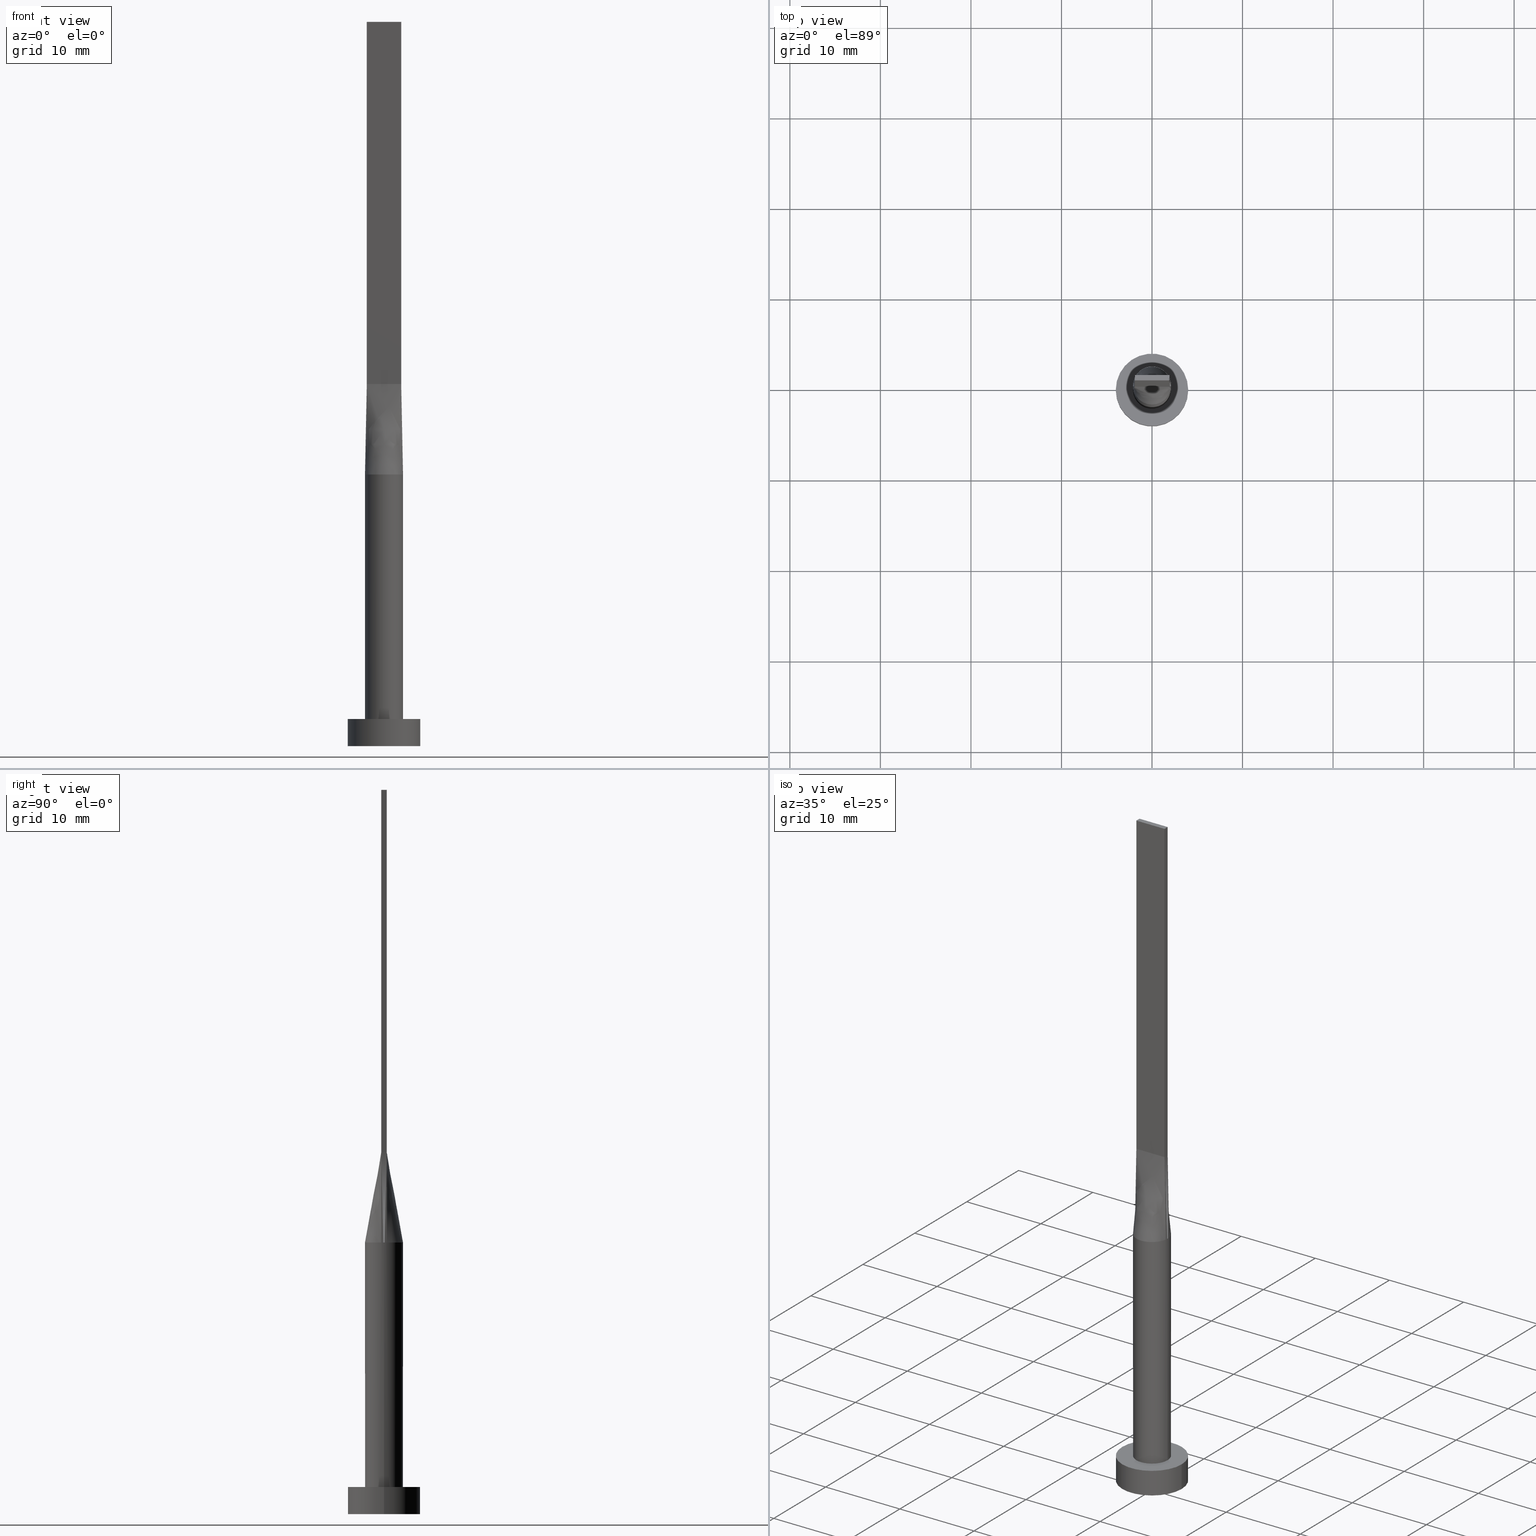
[diagram: canonical four-view strip — front | top / right | iso, engineering-drawing reading convention]
A machine part, canonical four-view strip (front | top / right | iso — engineering-drawing reading convention). The complete STEP part file that produces these views, byte-faithful:
ISO-10303-21;
HEADER;
FILE_DESCRIPTION (( 'STEP AP203' ),
    '1' );
FILE_NAME ('d4d4.STEP',
    '2026-02-12T09:05:20',
    ( '' ),
    ( '' ),
    'SwSTEP 2.0',
    'SolidWorks 2019',
    '' );
FILE_SCHEMA (( 'CONFIG_CONTROL_DESIGN' ));
ENDSEC;

DATA;
#1 = DATE_AND_TIME ( #402, #19 ) ;
#2 = LINE ( 'NONE', #552, #215 ) ;
#3 = FACE_OUTER_BOUND ( 'NONE', #342, .T. ) ;
#4 = DIRECTION ( 'NONE',  ( 1.000000000000000000, 0.000000000000000000, 0.000000000000000000 ) ) ;
#5 = EDGE_CURVE ( 'NONE', #261, #35, #446, .T. ) ;
#6 = LINE ( 'NONE', #216, #61 ) ;
#7 = CARTESIAN_POINT ( 'NONE',  ( 1.987151113595522212, 0.3137607021466614077, 35.00000000000000000 ) ) ;
#8 = CARTESIAN_POINT ( 'NONE',  ( -0.5970064165420509994, -2.033566071616262239, 30.00000000000000711 ) ) ;
#9 = DIRECTION ( 'NONE',  ( -0.000000000000000000, -0.000000000000000000, -1.000000000000000000 ) ) ;
#10 = CARTESIAN_POINT ( 'NONE',  ( 1.119115561862284114, -1.799829988698610883, 30.00000000000000000 ) ) ;
#11 = CYLINDRICAL_SURFACE ( 'NONE', #329, 4.000000000000000000 ) ;
#12 = DIRECTION ( 'NONE',  ( 7.132909029509899409E-17, 1.000000000000000000, -0.000000000000000000 ) ) ;
#13 = CARTESIAN_POINT ( 'NONE',  ( 0.3166666666666672625, -0.2999999999999996003, 39.99999999999999289 ) ) ;
#14 = CC_DESIGN_PERSON_AND_ORGANIZATION_ASSIGNMENT ( #127, #269, ( #231 ) ) ;
#15 = CARTESIAN_POINT ( 'NONE',  ( -1.899999999999999911, -0.2999999999999994893, 40.00000000000000000 ) ) ;
#16 = CARTESIAN_POINT ( 'NONE',  ( -1.899999999999999689, 0.3000000000000002109, 40.00000000000000000 ) ) ;
#17 = CARTESIAN_POINT ( 'NONE',  ( -1.899999999999999689, 0.3000000000000002109, 80.00000000000000000 ) ) ;
#18 = DIRECTION ( 'NONE',  ( -0.000000000000000000, -0.000000000000000000, -1.000000000000000000 ) ) ;
#19 = LOCAL_TIME ( 10, 5, 20.00000000000000000, #174 ) ;
#20 = PRODUCT ( 'd4d4', 'd4d4', '', ( #45 ) ) ;
#21 = DIRECTION ( 'NONE',  ( 0.000000000000000000, 0.000000000000000000, 1.000000000000000000 ) ) ;
#22 = LINE ( 'NONE', #206, #495 ) ;
#23 = EDGE_CURVE ( 'NONE', #389, #117, #489, .T. ) ;
#24 = ORIENTED_EDGE ( 'NONE', *, *, #220, .T. ) ;
#25 = B_SPLINE_SURFACE_WITH_KNOTS ( 'NONE', 3, 1, ( 
 ( #319, #497 ),
 ( #549, #281 ),
 ( #375, #500 ),
 ( #97, #278 ),
 ( #455, #556 ),
 ( #95, #188 ) ),
 .UNSPECIFIED., .F., .F., .F.,
 ( 4, 2, 4 ),
 ( 2, 2 ),
 ( 0.000000000000000000, 0.5000000000000000000, 1.000000000000000000 ),
 ( 0.000000000000000000, 1.000000000000000000 ),
 .UNSPECIFIED. ) ;
#26 = CARTESIAN_POINT ( 'NONE',  ( 1.741666666666666474, 0.3000000000000002109, 39.99999999999999289 ) ) ;
#27 = ORIENTED_EDGE ( 'NONE', *, *, #543, .T. ) ;
#28 = CARTESIAN_POINT ( 'NONE',  ( 2.074302227191044956, 0.3275214042933228820, 30.00000000000000000 ) ) ;
#29 = ORIENTED_EDGE ( 'NONE', *, *, #88, .T. ) ;
#30 = CARTESIAN_POINT ( 'NONE',  ( 1.899999999999999689, 0.3000000000000002109, 80.00000000000000000 ) ) ;
#31 = ORIENTED_EDGE ( 'NONE', *, *, #353, .T. ) ;
#32 = PRODUCT_RELATED_PRODUCT_CATEGORY ( 'detail', '', ( #20 ) ) ;
#33 = COORDINATED_UNIVERSAL_TIME_OFFSET ( 1, 0, .AHEAD. ) ;
#34 = B_SPLINE_SURFACE_WITH_KNOTS ( 'NONE', 3, 1, ( 
 ( #28, #435 ),
 ( #123, #26 ),
 ( #430, #425 ),
 ( #569, #469 ),
 ( #115, #428 ),
 ( #294, #120 ),
 ( #251, #467 ),
 ( #158, #296 ),
 ( #386, #474 ),
 ( #77, #391 ),
 ( #201, #343 ),
 ( #561, #477 ),
 ( #337, #341 ),
 ( #255, #388 ),
 ( #567, #522 ),
 ( #73, #564 ),
 ( #257, #298 ),
 ( #472, #164 ) ),
 .UNSPECIFIED., .F., .F., .F.,
 ( 4, 2, 2, 2, 2, 2, 2, 2, 4 ),
 ( 2, 2 ),
 ( 0.000000000000000000, 0.1249999999999999722, 0.2500000000000000000, 0.3750000000000000000, 0.5000000000000000000, 0.6250000000000000000, 0.7500000000000000000, 0.8750000000000000000, 1.000000000000000000 ),
 ( 0.000000000000000000, 1.000000000000000000 ),
 .UNSPECIFIED. ) ;
#35 = VERTEX_POINT ( 'NONE', #577 ) ;
#36 = ORIENTED_EDGE ( 'NONE', *, *, #335, .F. ) ;
#37 = CC_DESIGN_APPROVAL ( #286, ( #330 ) ) ;
#38 = VECTOR ( 'NONE', #310, 1000.000000000000000 ) ;
#39 = DIRECTION ( 'NONE',  ( -0.000000000000000000, -0.000000000000000000, -1.000000000000000000 ) ) ;
#40 =( NAMED_UNIT ( * ) PLANE_ANGLE_UNIT ( ) SI_UNIT ( $, .RADIAN. ) );
#41 = EDGE_CURVE ( 'NONE', #389, #65, #104, .T. ) ;
#42 = CARTESIAN_POINT ( 'NONE',  ( -1.899999999999999911, -0.2999999999999994893, 40.00000000000000000 ) ) ;
#43 = COORDINATED_UNIVERSAL_TIME_OFFSET ( 1, 0, .AHEAD. ) ;
#44 = DIRECTION ( 'NONE',  ( 0.000000000000000000, 0.000000000000000000, 1.000000000000000000 ) ) ;
#45 = MECHANICAL_CONTEXT ( 'NONE', #222, 'mechanical' ) ;
#46 = AXIS2_PLACEMENT_3D ( 'NONE', #100, #12, #193 ) ;
#47 = DIRECTION ( 'NONE',  ( 1.000000000000000000, -7.993605777301127091E-15, 0.000000000000000000 ) ) ;
#48 = ORIENTED_EDGE ( 'NONE', *, *, #267, .T. ) ;
#49 = VECTOR ( 'NONE', #357, 1000.000000000000000 ) ;
#50 = CIRCLE ( 'NONE', #348, 2.100000000000000089 ) ;
#51 = ADVANCED_FACE ( 'NONE', ( #3 ), #532, .T. ) ;
#52 = CARTESIAN_POINT ( 'NONE',  ( -2.091329254218072364, 0.2196835664554852019, 30.00000000000000000 ) ) ;
#53 = B_SPLINE_CURVE_WITH_KNOTS ( 'NONE', 3,
 ( #273, #263, #312, #452, #493, #54, #175, #183, #544, #139, #93, #318, #86, #397, #131, #355, #307, #444 ),
 .UNSPECIFIED., .F., .F.,
 ( 4, 2, 2, 2, 2, 2, 2, 2, 4 ),
 ( 0.000000000000000000, 0.1249999999999999722, 0.2500000000000000000, 0.3750000000000000000, 0.5000000000000000000, 0.6250000000000000000, 0.7500000000000000000, 0.8750000000000000000, 1.000000000000000000 ),
 .UNSPECIFIED. ) ;
#54 = CARTESIAN_POINT ( 'NONE',  ( 1.342614810400549086, 1.634425746458369799, 30.00000000000001066 ) ) ;
#55 = CARTESIAN_POINT ( 'NONE',  ( -1.899999999999999911, -0.2999999999999994893, 40.00000000000000000 ) ) ;
#56 = CARTESIAN_POINT ( 'NONE',  ( 1.266666666666665941, -0.2999999999999997113, 39.99999999999999289 ) ) ;
#57 = FACE_OUTER_BOUND ( 'NONE', #433, .T. ) ;
#58 = APPLICATION_CONTEXT ( 'configuration controlled 3d designs of mechanical parts and assemblies' ) ;
#59 = CARTESIAN_POINT ( 'NONE',  ( -1.342614810400548864, -1.634425746458369355, 30.00000000000000355 ) ) ;
#60 = DIRECTION ( 'NONE',  ( 0.000000000000000000, 0.000000000000000000, 1.000000000000000000 ) ) ;
#61 = VECTOR ( 'NONE', #219, 1000.000000000000000 ) ;
#62 = CARTESIAN_POINT ( 'NONE',  ( -2.099842767731585624, -0.1098417832277421985, 30.00000000000000000 ) ) ;
#63 = EDGE_CURVE ( 'NONE', #450, #117, #448, .T. ) ;
#64 = CARTESIAN_POINT ( 'NONE',  ( 0.2990728642939452508, -2.100000000000000533, 30.00000000000001776 ) ) ;
#65 = VERTEX_POINT ( 'NONE', #270 ) ;
#66 = PLANE ( 'NONE',  #422 ) ;
#67 = DIRECTION ( 'NONE',  ( 0.000000000000000000, 0.000000000000000000, 1.000000000000000000 ) ) ;
#68 = CARTESIAN_POINT ( 'NONE',  ( 1.899999999999999023, -0.2999999999999997669, 80.00000000000000000 ) ) ;
#69 = CYLINDRICAL_SURFACE ( 'NONE', #572, 2.100000000000000089 ) ;
#70 = DIRECTION ( 'NONE',  ( -0.000000000000000000, -0.000000000000000000, -1.000000000000000000 ) ) ;
#71 = CIRCLE ( 'NONE', #479, 2.100000000000000089 ) ;
#72 = EDGE_CURVE ( 'NONE', #250, #541, #361, .T. ) ;
#73 = CARTESIAN_POINT ( 'NONE',  ( -1.996565546919327527, 0.6845950695482648785, 30.00000000000001066 ) ) ;
#74 = CARTESIAN_POINT ( 'NONE',  ( 1.899999999999999689, 0.3000000000000002109, 80.00000000000000000 ) ) ;
#75 = CARTESIAN_POINT ( 'NONE',  ( 0.000000000000000000, 0.000000000000000000, 80.00000000000000000 ) ) ;
#76 = EDGE_LOOP ( 'NONE', ( #505, #190, #165, #340 ) ) ;
#77 = CARTESIAN_POINT ( 'NONE',  ( -0.2990728642939458615, 2.100000000000000089, 30.00000000000001066 ) ) ;
#78 = ORIENTED_EDGE ( 'NONE', *, *, #101, .T. ) ;
#79 = VECTOR ( 'NONE', #107, 1000.000000000000114 ) ;
#80 = PLANE ( 'NONE',  #470 ) ;
#81 = CC_DESIGN_PERSON_AND_ORGANIZATION_ASSIGNMENT ( #535, #393, ( #330 ) ) ;
#82 = EDGE_LOOP ( 'NONE', ( #126, #265 ) ) ;
#83 = APPLICATION_PROTOCOL_DEFINITION ( 'international standard', 'config_control_design', 1994, #222 ) ;
#84 = ORIENTED_EDGE ( 'NONE', *, *, #41, .T. ) ;
#85 = PERSON_AND_ORGANIZATION ( #303, #258 ) ;
#86 = CARTESIAN_POINT ( 'NONE',  ( -1.342614810400549308, 1.634425746458370021, 30.00000000000000711 ) ) ;
#87 = APPROVAL_ROLE ( '' ) ;
#88 = EDGE_CURVE ( 'NONE', #538, #225, #6, .T. ) ;
#89 = CARTESIAN_POINT ( 'NONE',  ( -2.074302227191044956, -0.3275214042933223824, 30.00000000000000000 ) ) ;
#90 =( LENGTH_UNIT ( ) NAMED_UNIT ( * ) SI_UNIT ( .MILLI., .METRE. ) );
#91 = CARTESIAN_POINT ( 'NONE',  ( 1.899999999999999023, -0.2999999999999997669, 80.00000000000000000 ) ) ;
#92 = EDGE_LOOP ( 'NONE', ( #84, #492, #268, #224, #534 ) ) ;
#93 = CARTESIAN_POINT ( 'NONE',  ( -0.5970064165420507774, 2.033566071616263127, 30.00000000000000000 ) ) ;
#94 = DIRECTION ( 'NONE',  ( 1.000000000000000000, 0.000000000000000000, 0.000000000000000000 ) ) ;
#95 = CARTESIAN_POINT ( 'NONE',  ( 2.074302227191044956, 0.3275214042933226599, 30.00000000000000000 ) ) ;
#96 = CARTESIAN_POINT ( 'NONE',  ( -1.583333333333333037, -0.2999999999999994893, 40.00000000000000000 ) ) ;
#97 = CARTESIAN_POINT ( 'NONE',  ( 2.099842767731585624, 0.1098417832277423373, 30.00000000000000000 ) ) ;
#98 = CARTESIAN_POINT ( 'NONE',  ( -0.2990728642939464721, -2.100000000000000977, 30.00000000000001421 ) ) ;
#99 = DIRECTION ( 'NONE',  ( 1.000000000000000000, 0.000000000000000000, 0.000000000000000000 ) ) ;
#100 = CARTESIAN_POINT ( 'NONE',  ( -1.899999999999999911, -0.2999999999999994893, 80.00000000000000000 ) ) ;
#101 = EDGE_CURVE ( 'NONE', #35, #205, #346, .T. ) ;
#102 = CARTESIAN_POINT ( 'NONE',  ( -0.1583333333333324378, -0.2999999999999996003, 40.00000000000000000 ) ) ;
#103 = ORIENTED_EDGE ( 'NONE', *, *, #274, .F. ) ;
#104 = CIRCLE ( 'NONE', #432, 2.100000000000000089 ) ;
#105 = CARTESIAN_POINT ( 'NONE',  ( -1.899999999999999689, 0.3000000000000002109, 80.00000000000000000 ) ) ;
#106 = CIRCLE ( 'NONE', #302, 4.000000000000000000 ) ;
#107 = DIRECTION ( 'NONE',  ( -0.01742750958084840485, -0.002751712039081279787, 0.9998443428807622935 ) ) ;
#108 = LINE ( 'NONE', #74, #377 ) ;
#109 = CARTESIAN_POINT ( 'NONE',  ( -2.074302227191044956, 0.3275214042933229375, 30.00000000000000000 ) ) ;
#110 = EDGE_CURVE ( 'NONE', #541, #464, #177, .T. ) ;
#111 = DIRECTION ( 'NONE',  ( -1.000000000000000000, 1.084202172485504434E-15, 0.000000000000000000 ) ) ;
#112 = DIRECTION ( 'NONE',  ( 1.000000000000000000, 0.000000000000000000, 0.000000000000000000 ) ) ;
#113 = DIRECTION ( 'NONE',  ( -1.000000000000000000, 0.000000000000000000, 0.000000000000000000 ) ) ;
#114 = CIRCLE ( 'NONE', #423, 2.100000000000000089 ) ;
#115 = CARTESIAN_POINT ( 'NONE',  ( 1.692271541701912296, 1.268928319070362187, 30.00000000000000000 ) ) ;
#116 = VECTOR ( 'NONE', #548, 1000.000000000000000 ) ;
#117 = VERTEX_POINT ( 'NONE', #407 ) ;
#118 = DIRECTION ( 'NONE',  ( 1.000000000000000000, 0.000000000000000000, 0.000000000000000000 ) ) ;
#119 = VERTEX_POINT ( 'NONE', #537 ) ;
#120 = CARTESIAN_POINT ( 'NONE',  ( 0.7916666666666668517, 0.3000000000000001554, 39.99999999999999289 ) ) ;
#121 = APPROVAL ( #356, 'NEUR�EN�' ) ;
#122 = ORIENTED_EDGE ( 'NONE', *, *, #562, .F. ) ;
#123 = CARTESIAN_POINT ( 'NONE',  ( 2.047342767731584967, 0.4982646475365660188, 30.00000000000000355 ) ) ;
#124 = CIRCLE ( 'NONE', #140, 2.100000000000000089 ) ;
#125 = CC_DESIGN_APPROVAL ( #344, ( #376 ) ) ;
#126 = ORIENTED_EDGE ( 'NONE', *, *, #101, .F. ) ;
#127 = PERSON_AND_ORGANIZATION ( #303, #258 ) ;
#128 = ORIENTED_EDGE ( 'NONE', *, *, #72, .F. ) ;
#129 = EDGE_CURVE ( 'NONE', #253, #345, #53, .T. ) ;
#130 = CARTESIAN_POINT ( 'NONE',  ( -1.899999999999999911, -0.2999999999999994893, 80.00000000000000000 ) ) ;
#131 = CARTESIAN_POINT ( 'NONE',  ( -1.819451111325472326, 1.069832718648841885, 30.00000000000000711 ) ) ;
#132 = CARTESIAN_POINT ( 'NONE',  ( -2.100000000000000089, 0.000000000000000000, 30.00000000000000000 ) ) ;
#133 = VERTEX_POINT ( 'NONE', #405 ) ;
#134 = CC_DESIGN_PERSON_AND_ORGANIZATION_ASSIGNMENT ( #221, #437, ( #20 ) ) ;
#135 = EDGE_LOOP ( 'NONE', ( #36, #385, #370, #518, #521, #254 ) ) ;
#136 = APPROVAL_ROLE ( '' ) ;
#137 = PLANE ( 'NONE',  #244 ) ;
#138 = APPROVAL_PERSON_ORGANIZATION ( #442, #121, #87 ) ;
#139 = CARTESIAN_POINT ( 'NONE',  ( -0.2990728642939458615, 2.100000000000000089, 30.00000000000001066 ) ) ;
#140 = AXIS2_PLACEMENT_3D ( 'NONE', #321, #515, #99 ) ;
#141 = SHAPE_DEFINITION_REPRESENTATION ( #247, #462 ) ;
#142 = CARTESIAN_POINT ( 'NONE',  ( 0.000000000000000000, 0.000000000000000000, 0.000000000000000000 ) ) ;
#143 = ORIENTED_EDGE ( 'NONE', *, *, #543, .F. ) ;
#144 = CARTESIAN_POINT ( 'NONE',  ( 2.074302227191044956, -0.3275214042933231595, 30.00000000000000000 ) ) ;
#145 = ADVANCED_FACE ( 'NONE', ( #485 ), #434, .T. ) ;
#146 = CARTESIAN_POINT ( 'NONE',  ( -4.000000000000000000, 0.000000000000000000, 3.000000000000000000 ) ) ;
#147 = DIRECTION ( 'NONE',  ( 1.000000000000000000, 0.000000000000000000, 0.000000000000000000 ) ) ;
#148 = CARTESIAN_POINT ( 'NONE',  ( 1.899999999999999023, -0.2999999999999997669, 40.00000000000000000 ) ) ;
#149 = ORIENTED_EDGE ( 'NONE', *, *, #88, .F. ) ;
#150 = DIRECTION ( 'NONE',  ( -0.000000000000000000, -0.000000000000000000, -1.000000000000000000 ) ) ;
#151 = DIRECTION ( 'NONE',  ( 0.000000000000000000, 0.000000000000000000, 1.000000000000000000 ) ) ;
#152 = AXIS2_PLACEMENT_3D ( 'NONE', #75, #347, #445 ) ;
#153 = CARTESIAN_POINT ( 'NONE',  ( 2.100000000000000089, 2.571758278209441957E-16, 3.000000000000000000 ) ) ;
#154 = DIRECTION ( 'NONE',  ( 1.000000000000000000, 0.000000000000000000, 0.000000000000000000 ) ) ;
#155 = DIRECTION ( 'NONE',  ( -0.000000000000000000, -0.000000000000000000, -1.000000000000000000 ) ) ;
#156 = LINE ( 'NONE', #160, #507 ) ;
#157 = CARTESIAN_POINT ( 'NONE',  ( 2.100000000000000089, 2.571758278209441957E-16, 30.00000000000000000 ) ) ;
#158 = CARTESIAN_POINT ( 'NONE',  ( 0.5970064165420508884, 2.033566071616262683, 30.00000000000001066 ) ) ;
#159 = ORIENTED_EDGE ( 'NONE', *, *, #186, .F. ) ;
#160 = CARTESIAN_POINT ( 'NONE',  ( -1.987151113595522656, -0.3137607021466609636, 35.00000000000000000 ) ) ;
#161 = VECTOR ( 'NONE', #502, 1000.000000000000000 ) ;
#162 = EDGE_LOOP ( 'NONE', ( #324, #350 ) ) ;
#163 = EDGE_CURVE ( 'NONE', #480, #395, #560, .T. ) ;
#164 = CARTESIAN_POINT ( 'NONE',  ( -1.899999999999999689, 0.3000000000000002109, 40.00000000000000000 ) ) ;
#165 = ORIENTED_EDGE ( 'NONE', *, *, #293, .F. ) ;
#166 = FACE_OUTER_BOUND ( 'NONE', #226, .T. ) ;
#167 = ORIENTED_EDGE ( 'NONE', *, *, #110, .F. ) ;
#168 = CLOSED_SHELL ( 'NONE', ( #536, #179, #51, #475, #309, #313, #145, #431, #440, #519, #526, #204, #465, #327, #570 ) ) ;
#169 = EDGE_LOOP ( 'NONE', ( #426, #103, #392, #48 ) ) ;
#170 = AXIS2_PLACEMENT_3D ( 'NONE', #248, #203, #118 ) ;
#171 = ORIENTED_EDGE ( 'NONE', *, *, #456, .T. ) ;
#172 = CALENDAR_DATE ( 2026, 12, 2 ) ;
#173 = DIRECTION ( 'NONE',  ( -0.01742750958084847077, 0.002751712039081371727, 0.9998443428807622935 ) ) ;
#174 = COORDINATED_UNIVERSAL_TIME_OFFSET ( 1, 0, .AHEAD. ) ;
#175 = CARTESIAN_POINT ( 'NONE',  ( 1.119115561862284558, 1.799829988698611105, 30.00000000000000355 ) ) ;
#176 = LOCAL_TIME ( 10, 5, 20.00000000000000000, #308 ) ;
#177 = LINE ( 'NONE', #181, #49 ) ;
#178 = APPROVAL_ROLE ( '' ) ;
#179 = ADVANCED_FACE ( 'NONE', ( #236 ), #11, .T. ) ;
#180 = CARTESIAN_POINT ( 'NONE',  ( 4.000000000000000000, 4.898587196589412829E-16, 0.000000000000000000 ) ) ;
#181 = CARTESIAN_POINT ( 'NONE',  ( -1.899999999999999689, 0.3000000000000002109, 40.00000000000000000 ) ) ;
#182 = CARTESIAN_POINT ( 'NONE',  ( 2.074492141291045755, -0.3275508996892426139, 30.00000000000000000 ) ) ;
#183 = CARTESIAN_POINT ( 'NONE',  ( 0.5970064165420508884, 2.033566071616262683, 30.00000000000001066 ) ) ;
#184 = CALENDAR_DATE ( 2026, 12, 2 ) ;
#185 = DIRECTION ( 'NONE',  ( 1.000000000000000000, 0.000000000000000000, 0.000000000000000000 ) ) ;
#186 = EDGE_CURVE ( 'NONE', #65, #205, #359, .T. ) ;
#187 = CARTESIAN_POINT ( 'NONE',  ( -1.119115561862284558, -1.799829988698610439, 30.00000000000000355 ) ) ;
#188 = CARTESIAN_POINT ( 'NONE',  ( 1.899999999999999689, 0.3000000000000002109, 40.00000000000000000 ) ) ;
#189 = CARTESIAN_POINT ( 'NONE',  ( 0.6333333333333335258, -0.2999999999999996003, 39.99999999999999289 ) ) ;
#190 = ORIENTED_EDGE ( 'NONE', *, *, #267, .F. ) ;
#191 = CYLINDRICAL_SURFACE ( 'NONE', #196, 2.100000000000000089 ) ;
#192 = DESIGN_CONTEXT ( 'detailed design', #58, 'design' ) ;
#193 = DIRECTION ( 'NONE',  ( -1.000000000000000000, 7.132909029509899409E-17, 0.000000000000000000 ) ) ;
#194 = DIRECTION ( 'NONE',  ( 1.000000000000000000, -3.614007241618350743E-16, 0.000000000000000000 ) ) ;
#195 = CARTESIAN_POINT ( 'NONE',  ( 0.000000000000000000, 0.000000000000000000, 3.000000000000000000 ) ) ;
#196 = AXIS2_PLACEMENT_3D ( 'NONE', #379, #155, #471 ) ;
#197 = CARTESIAN_POINT ( 'NONE',  ( 0.000000000000000000, 0.000000000000000000, 0.000000000000000000 ) ) ;
#198 = AXIS2_PLACEMENT_3D ( 'NONE', #503, #332, #154 ) ;
#199 = FACE_OUTER_BOUND ( 'NONE', #135, .T. ) ;
#200 = DIRECTION ( 'NONE',  ( 1.000000000000000000, 0.000000000000000000, 0.000000000000000000 ) ) ;
#201 = CARTESIAN_POINT ( 'NONE',  ( -0.5970064165420507774, 2.033566071616263127, 30.00000000000000000 ) ) ;
#202 = ORIENTED_EDGE ( 'NONE', *, *, #129, .T. ) ;
#203 = DIRECTION ( 'NONE',  ( 0.000000000000000000, 0.000000000000000000, 1.000000000000000000 ) ) ;
#204 = ADVANCED_FACE ( 'NONE', ( #554 ), #66, .F. ) ;
#205 = VERTEX_POINT ( 'NONE', #153 ) ;
#206 = CARTESIAN_POINT ( 'NONE',  ( 1.899999999999999689, 0.3000000000000002109, 40.00000000000000000 ) ) ;
#207 = ORIENTED_EDGE ( 'NONE', *, *, #456, .F. ) ;
#208 = DIRECTION ( 'NONE',  ( -3.614007241618348278E-16, 1.000000000000000000, -0.000000000000000000 ) ) ;
#209 = ORIENTED_EDGE ( 'NONE', *, *, #63, .F. ) ;
#210 = CARTESIAN_POINT ( 'NONE',  ( -2.074486960997361962, -0.3275502116714910095, 30.00000000000000000 ) ) ;
#211 = EDGE_CURVE ( 'NONE', #133, #436, #336, .T. ) ;
#212 = ORIENTED_EDGE ( 'NONE', *, *, #5, .T. ) ;
#213 = CIRCLE ( 'NONE', #198, 4.000000000000000000 ) ;
#214 = DIRECTION ( 'NONE',  ( 0.000000000000000000, 0.000000000000000000, 1.000000000000000000 ) ) ;
#215 = VECTOR ( 'NONE', #325, 1000.000000000000114 ) ;
#216 = CARTESIAN_POINT ( 'NONE',  ( 4.000000000000000000, 4.898587196589412829E-16, 3.000000000000000000 ) ) ;
#217 = APPROVAL_DATE_TIME ( #530, #121 ) ;
#218 = CARTESIAN_POINT ( 'NONE',  ( 1.987151113595522212, -0.3137607021466614632, 35.00000000000000000 ) ) ;
#219 = DIRECTION ( 'NONE',  ( -0.000000000000000000, -0.000000000000000000, -1.000000000000000000 ) ) ;
#220 = EDGE_CURVE ( 'NONE', #464, #117, #382, .T. ) ;
#221 = PERSON_AND_ORGANIZATION ( #303, #258 ) ;
#222 = APPLICATION_CONTEXT ( 'configuration controlled 3d designs of mechanical parts and assemblies' ) ;
#223 = LOCAL_TIME ( 10, 5, 20.00000000000000000, #277 ) ;
#224 = ORIENTED_EDGE ( 'NONE', *, *, #499, .F. ) ;
#225 = VERTEX_POINT ( 'NONE', #180 ) ;
#226 = EDGE_LOOP ( 'NONE', ( #202, #31, #128, #259 ) ) ;
#227 = CARTESIAN_POINT ( 'NONE',  ( -1.899999999999999689, -0.09999999999999957534, 39.99999999999999289 ) ) ;
#228 = CARTESIAN_POINT ( 'NONE',  ( 0.000000000000000000, 0.000000000000000000, 3.000000000000000000 ) ) ;
#229 = APPROVAL_STATUS ( 'not_yet_approved' ) ;
#230 = FACE_BOUND ( 'NONE', #82, .T. ) ;
#231 = PRODUCT_DEFINITION ( 'NEZN�M�', '', #330, #192 ) ;
#232 = CARTESIAN_POINT ( 'NONE',  ( -1.266666666666666385, -0.2999999999999994893, 39.99999999999999289 ) ) ;
#233 = CARTESIAN_POINT ( 'NONE',  ( -1.899999999999999467, 0.2000000000000002331, 39.99999999999999289 ) ) ;
#234 = CARTESIAN_POINT ( 'NONE',  ( -0.6333333333333327486, -0.2999999999999996003, 39.99999999999999289 ) ) ;
#235 = VECTOR ( 'NONE', #509, 1000.000000000000000 ) ;
#236 = FACE_OUTER_BOUND ( 'NONE', #574, .T. ) ;
#237 = PLANE ( 'NONE',  #46 ) ;
#238 = CARTESIAN_POINT ( 'NONE',  ( 0.1583333333333341031, -0.2999999999999996003, 39.99999999999999289 ) ) ;
#239 = DIRECTION ( 'NONE',  ( 3.614007241618350743E-16, 1.000000000000000000, 0.000000000000000000 ) ) ;
#240 = FACE_OUTER_BOUND ( 'NONE', #92, .T. ) ;
#241 = EDGE_CURVE ( 'NONE', #395, #119, #461, .T. ) ;
#242 = FACE_OUTER_BOUND ( 'NONE', #162, .T. ) ;
#243 = CARTESIAN_POINT ( 'NONE',  ( 0.000000000000000000, 0.000000000000000000, 30.00000000000000000 ) ) ;
#244 = AXIS2_PLACEMENT_3D ( 'NONE', #553, #317, #409 ) ;
#245 = AXIS2_PLACEMENT_3D ( 'NONE', #228, #400, #494 ) ;
#246 = CARTESIAN_POINT ( 'NONE',  ( 2.074471112824316510, 0.3275477247839024275, 30.00000000000000000 ) ) ;
#247 = PRODUCT_DEFINITION_SHAPE ( 'NONE', 'NONE',  #231 ) ;
#248 = CARTESIAN_POINT ( 'NONE',  ( 0.000000000000000000, 0.000000000000000000, 0.000000000000000000 ) ) ;
#249 = MANIFOLD_SOLID_BREP ( 'P�idat vysunut�m5', #168 ) ;
#250 = VERTEX_POINT ( 'NONE', #287 ) ;
#251 = CARTESIAN_POINT ( 'NONE',  ( 1.119115561862284558, 1.799829988698611105, 30.00000000000000355 ) ) ;
#252 = EDGE_CURVE ( 'NONE', #261, #571, #124, .T. ) ;
#253 = VERTEX_POINT ( 'NONE', #246 ) ;
#254 = ORIENTED_EDGE ( 'NONE', *, *, #129, .F. ) ;
#255 = CARTESIAN_POINT ( 'NONE',  ( -1.692271541701912296, 1.268928319070362631, 30.00000000000001066 ) ) ;
#256 = ORIENTED_EDGE ( 'NONE', *, *, #420, .F. ) ;
#257 = CARTESIAN_POINT ( 'NONE',  ( -2.047342767731585855, 0.4982646475365663519, 30.00000000000000355 ) ) ;
#258 = ORGANIZATION ( 'NEUR�EN�', 'NEUR�EN�', '' ) ;
#259 = ORIENTED_EDGE ( 'NONE', *, *, #482, .F. ) ;
#260 = PERSON_AND_ORGANIZATION_ROLE ( 'classification_officer' ) ;
#261 = VERTEX_POINT ( 'NONE', #372 ) ;
#262 = SECURITY_CLASSIFICATION_LEVEL ( 'unclassified' ) ;
#263 = CARTESIAN_POINT ( 'NONE',  ( 2.047342767731584967, 0.4982646475365660188, 30.00000000000000355 ) ) ;
#264 = AXIS2_PLACEMENT_3D ( 'NONE', #197, #60, #458 ) ;
#265 = ORIENTED_EDGE ( 'NONE', *, *, #371, .F. ) ;
#266 = CALENDAR_DATE ( 2026, 12, 2 ) ;
#267 = EDGE_CURVE ( 'NONE', #480, #250, #108, .T. ) ;
#268 = ORIENTED_EDGE ( 'NONE', *, *, #482, .T. ) ;
#269 = PERSON_AND_ORGANIZATION_ROLE ( 'creator' ) ;
#270 = CARTESIAN_POINT ( 'NONE',  ( 2.099921383865792635, 5.174786140116233847E-16, 30.00000000000000000 ) ) ;
#271 = APPROVAL_DATE_TIME ( #315, #344 ) ;
#272 = AXIS2_PLACEMENT_3D ( 'NONE', #468, #21, #200 ) ;
#273 = CARTESIAN_POINT ( 'NONE',  ( 2.074471112824316510, 0.3275477247839024275, 30.00000000000000000 ) ) ;
#274 = EDGE_CURVE ( 'NONE', #395, #541, #466, .T. ) ;
#275 = DIRECTION ( 'NONE',  ( 1.000000000000000000, 0.000000000000000000, 0.000000000000000000 ) ) ;
#276 = CARTESIAN_POINT ( 'NONE',  ( 1.692271541701912962, -1.268928319070363520, 30.00000000000002132 ) ) ;
#277 = COORDINATED_UNIVERSAL_TIME_OFFSET ( 1, 0, .AHEAD. ) ;
#278 = CARTESIAN_POINT ( 'NONE',  ( 1.899999999999999467, 0.1000000000000001166, 39.99999999999999289 ) ) ;
#279 = CARTESIAN_POINT ( 'NONE',  ( -0.3166666666666658192, -0.2999999999999996003, 39.99999999999999289 ) ) ;
#280 = DIRECTION ( 'NONE',  ( 1.084202172485504434E-15, 1.000000000000000000, 0.000000000000000000 ) ) ;
#281 = CARTESIAN_POINT ( 'NONE',  ( 1.899999999999999689, -0.1999999999999998168, 39.99999999999999289 ) ) ;
#282 = VECTOR ( 'NONE', #173, 1000.000000000000114 ) ;
#283 = CARTESIAN_POINT ( 'NONE',  ( -2.047342767731585411, -0.4982646475365654637, 29.99999999999999645 ) ) ;
#284 = CARTESIAN_POINT ( 'NONE',  ( 0.000000000000000000, 0.000000000000000000, 3.000000000000000000 ) ) ;
#285 = LINE ( 'NONE', #510, #328 ) ;
#286 = APPROVAL ( #487, 'NEUR�EN�' ) ;
#287 = CARTESIAN_POINT ( 'NONE',  ( 1.899999999999999689, 0.3000000000000002109, 40.00000000000000000 ) ) ;
#288 = CARTESIAN_POINT ( 'NONE',  ( -2.091329254218072364, -0.2196835664554846468, 30.00000000000000000 ) ) ;
#289 = DIRECTION ( 'NONE',  ( -1.084202172485504434E-15, -1.000000000000000000, 0.000000000000000000 ) ) ;
#290 = PLANE ( 'NONE',  #152 ) ;
#291 = CIRCLE ( 'NONE', #316, 4.000000000000000000 ) ;
#292 = LINE ( 'NONE', #68, #565 ) ;
#293 = EDGE_CURVE ( 'NONE', #450, #480, #292, .T. ) ;
#294 = CARTESIAN_POINT ( 'NONE',  ( 1.342614810400549086, 1.634425746458369799, 30.00000000000001066 ) ) ;
#295 = ORIENTED_EDGE ( 'NONE', *, *, #420, .T. ) ;
#296 = CARTESIAN_POINT ( 'NONE',  ( 0.3166666666666671515, 0.3000000000000001554, 39.99999999999999289 ) ) ;
#297 = ORIENTED_EDGE ( 'NONE', *, *, #353, .F. ) ;
#298 = CARTESIAN_POINT ( 'NONE',  ( -1.741666666666666252, 0.3000000000000002109, 39.99999999999999289 ) ) ;
#299 = ORIENTED_EDGE ( 'NONE', *, *, #491, .T. ) ;
#300 = AXIS2_PLACEMENT_3D ( 'NONE', #540, #580, #94 ) ;
#301 = CARTESIAN_POINT ( 'NONE',  ( 0.000000000000000000, 0.000000000000000000, 0.000000000000000000 ) ) ;
#302 = AXIS2_PLACEMENT_3D ( 'NONE', #514, #520, #112 ) ;
#303 = PERSON ( 'NEUR�EN�', 'NEUR�EN�', 'NEUR�EN�', ('NEUR�EN�'), ('NEUR�EN�'), ('NEUR�EN�') ) ;
#304 = ORIENTED_EDGE ( 'NONE', *, *, #211, .T. ) ;
#305 =( NAMED_UNIT ( * ) SI_UNIT ( $, .STERADIAN. ) SOLID_ANGLE_UNIT ( ) );
#306 = EDGE_LOOP ( 'NONE', ( #24, #209, #566, #295 ) ) ;
#307 = CARTESIAN_POINT ( 'NONE',  ( -2.047342767731585855, 0.4982646475365663519, 30.00000000000000355 ) ) ;
#308 = COORDINATED_UNIVERSAL_TIME_OFFSET ( 1, 0, .AHEAD. ) ;
#309 = ADVANCED_FACE ( 'NONE', ( #242 ), #419, .F. ) ;
#310 = DIRECTION ( 'NONE',  ( -0.000000000000000000, -0.000000000000000000, -1.000000000000000000 ) ) ;
#311 = DIRECTION ( 'NONE',  ( 1.000000000000000000, -7.132909029509899409E-17, 0.000000000000000000 ) ) ;
#312 = CARTESIAN_POINT ( 'NONE',  ( 1.996565546919327527, 0.6845950695482651005, 30.00000000000000355 ) ) ;
#313 = ADVANCED_FACE ( 'NONE', ( #424 ), #191, .T. ) ;
#314 = ORIENTED_EDGE ( 'NONE', *, *, #274, .T. ) ;
#315 = DATE_AND_TIME ( #184, #223 ) ;
#316 = AXIS2_PLACEMENT_3D ( 'NONE', #142, #151, #185 ) ;
#317 = DIRECTION ( 'NONE',  ( 0.000000000000000000, 0.000000000000000000, 1.000000000000000000 ) ) ;
#318 = CARTESIAN_POINT ( 'NONE',  ( -1.119115561862284558, 1.799829988698611327, 30.00000000000001066 ) ) ;
#319 = CARTESIAN_POINT ( 'NONE',  ( 2.074302227191044956, -0.3275214042933231595, 30.00000000000000000 ) ) ;
#320 = CARTESIAN_POINT ( 'NONE',  ( 1.996565546919328415, -0.6845950695482654336, 30.00000000000001066 ) ) ;
#321 = CARTESIAN_POINT ( 'NONE',  ( 0.000000000000000000, 0.000000000000000000, 30.00000000000000000 ) ) ;
#322 = FACE_OUTER_BOUND ( 'NONE', #306, .T. ) ;
#323 = CARTESIAN_POINT ( 'NONE',  ( -1.996565546919327971, -0.6845950695482642123, 30.00000000000000355 ) ) ;
#324 = ORIENTED_EDGE ( 'NONE', *, *, #491, .F. ) ;
#325 = DIRECTION ( 'NONE',  ( 0.01742750958084840485, -0.002751712039081263307, 0.9998443428807622935 ) ) ;
#326 = LINE ( 'NONE', #7, #79 ) ;
#327 = ADVANCED_FACE ( 'NONE', ( #414 ), #333, .F. ) ;
#328 = VECTOR ( 'NONE', #9, 1000.000000000000000 ) ;
#329 = AXIS2_PLACEMENT_3D ( 'NONE', #284, #558, #113 ) ;
#330 = PRODUCT_DEFINITION_FORMATION_WITH_SPECIFIED_SOURCE ( 'LIBOVOLN�', '', #20, .NOT_KNOWN. ) ;
#331 = DIRECTION ( 'NONE',  ( -3.614007241618350250E-16, -1.000000000000000000, 0.000000000000000000 ) ) ;
#332 = DIRECTION ( 'NONE',  ( 0.000000000000000000, 0.000000000000000000, 1.000000000000000000 ) ) ;
#333 = PLANE ( 'NONE',  #451 ) ;
#334 = DIRECTION ( 'NONE',  ( -0.01742750958084838056, -0.002751712039081322721, -0.9998443428807622935 ) ) ;
#335 = EDGE_CURVE ( 'NONE', #65, #253, #527, .T. ) ;
#336 = LINE ( 'NONE', #146, #581 ) ;
#337 = CARTESIAN_POINT ( 'NONE',  ( -1.342614810400549308, 1.634425746458370021, 30.00000000000000711 ) ) ;
#338 = ORIENTED_EDGE ( 'NONE', *, *, #360, .T. ) ;
#339 = FACE_OUTER_BOUND ( 'NONE', #169, .T. ) ;
#340 = ORIENTED_EDGE ( 'NONE', *, *, #63, .T. ) ;
#341 = CARTESIAN_POINT ( 'NONE',  ( -0.7916666666666659635, 0.3000000000000002109, 39.99999999999999289 ) ) ;
#342 = EDGE_LOOP ( 'NONE', ( #149, #517, #304, #299 ) ) ;
#343 = CARTESIAN_POINT ( 'NONE',  ( -0.3166666666666660412, 0.3000000000000001554, 39.99999999999999289 ) ) ;
#344 = APPROVAL ( #229, 'NEUR�EN�' ) ;
#345 = VERTEX_POINT ( 'NONE', #403 ) ;
#346 = CIRCLE ( 'NONE', #300, 2.100000000000000089 ) ;
#347 = DIRECTION ( 'NONE',  ( 0.000000000000000000, 0.000000000000000000, 1.000000000000000000 ) ) ;
#348 = AXIS2_PLACEMENT_3D ( 'NONE', #368, #546, #4 ) ;
#349 = ORIENTED_EDGE ( 'NONE', *, *, #578, .T. ) ;
#350 = ORIENTED_EDGE ( 'NONE', *, *, #396, .F. ) ;
#351 = DATE_TIME_ROLE ( 'classification_date' ) ;
#352 = CARTESIAN_POINT ( 'NONE',  ( -1.899999999999999689, 0.3000000000000002109, 40.00000000000000000 ) ) ;
#353 = EDGE_CURVE ( 'NONE', #345, #541, #2, .T. ) ;
#354 = PERSON_AND_ORGANIZATION ( #303, #258 ) ;
#355 = CARTESIAN_POINT ( 'NONE',  ( -1.996565546919327527, 0.6845950695482648785, 30.00000000000001066 ) ) ;
#356 = APPROVAL_STATUS ( 'not_yet_approved' ) ;
#357 = DIRECTION ( 'NONE',  ( -3.614007241618350250E-16, -1.000000000000000000, 0.000000000000000000 ) ) ;
#358 = DATE_AND_TIME ( #533, #545 ) ;
#359 = LINE ( 'NONE', #157, #116 ) ;
#360 = EDGE_CURVE ( 'NONE', #133, #538, #213, .T. ) ;
#361 = LINE ( 'NONE', #352, #496 ) ;
#362 = CARTESIAN_POINT ( 'NONE',  ( -1.899999999999999911, -0.2999999999999994338, 40.00000000000000000 ) ) ;
#363 = ORIENTED_EDGE ( 'NONE', *, *, #41, .F. ) ;
#364 = LOCAL_TIME ( 10, 5, 20.00000000000000000, #33 ) ;
#365 = CARTESIAN_POINT ( 'NONE',  ( -1.899999999999999689, 0.3000000000000002109, 80.00000000000000000 ) ) ;
#366 = VECTOR ( 'NONE', #39, 1000.000000000000000 ) ;
#367 = CARTESIAN_POINT ( 'NONE',  ( 1.108333333333332948, -0.2999999999999996558, 39.99999999999999289 ) ) ;
#368 = CARTESIAN_POINT ( 'NONE',  ( 0.000000000000000000, 0.000000000000000000, 30.00000000000000000 ) ) ;
#369 = CARTESIAN_POINT ( 'NONE',  ( 1.342614810400548864, -1.634425746458370021, 30.00000000000000355 ) ) ;
#370 = ORIENTED_EDGE ( 'NONE', *, *, #371, .T. ) ;
#371 = EDGE_CURVE ( 'NONE', #205, #35, #114, .T. ) ;
#372 = CARTESIAN_POINT ( 'NONE',  ( -2.099921383865792635, -5.254633567926592411E-16, 30.00000000000000000 ) ) ;
#373 = FACE_OUTER_BOUND ( 'NONE', #568, .T. ) ;
#374 = CARTESIAN_POINT ( 'NONE',  ( -1.899999999999999689, 0.3000000000000002109, 80.00000000000000000 ) ) ;
#375 = CARTESIAN_POINT ( 'NONE',  ( 2.099842767731585624, -0.1098417832277428230, 30.00000000000000000 ) ) ;
#376 = SECURITY_CLASSIFICATION ( '', '', #262 ) ;
#377 = VECTOR ( 'NONE', #70, 1000.000000000000000 ) ;
#378 =( GEOMETRIC_REPRESENTATION_CONTEXT ( 3 ) GLOBAL_UNCERTAINTY_ASSIGNED_CONTEXT ( ( #427 ) ) GLOBAL_UNIT_ASSIGNED_CONTEXT ( ( #90, #40, #305 ) ) REPRESENTATION_CONTEXT ( 'NONE', 'WORKASPACE' ) );
#379 = CARTESIAN_POINT ( 'NONE',  ( 0.000000000000000000, 0.000000000000000000, 30.00000000000000000 ) ) ;
#380 = DIRECTION ( 'NONE',  ( -1.000000000000000000, 0.000000000000000000, 0.000000000000000000 ) ) ;
#381 = CC_DESIGN_DATE_AND_TIME_ASSIGNMENT ( #439, #351, ( #376 ) ) ;
#382 = LINE ( 'NONE', #15, #161 ) ;
#383 = DIRECTION ( 'NONE',  ( 0.000000000000000000, -0.000000000000000000, -1.000000000000000000 ) ) ;
#384 = B_SPLINE_SURFACE_WITH_KNOTS ( 'NONE', 3, 1, ( 
 ( #109, #16 ),
 ( #52, #233 ),
 ( #459, #411 ),
 ( #62, #227 ),
 ( #288, #453 ),
 ( #406, #362 ) ),
 .UNSPECIFIED., .F., .F., .F.,
 ( 4, 2, 4 ),
 ( 2, 2 ),
 ( 0.000000000000000000, 0.5000000000000000000, 1.000000000000000000 ),
 ( 0.000000000000000000, 1.000000000000000000 ),
 .UNSPECIFIED. ) ;
#385 = ORIENTED_EDGE ( 'NONE', *, *, #186, .T. ) ;
#386 = CARTESIAN_POINT ( 'NONE',  ( 0.2990728642939458615, 2.100000000000000089, 30.00000000000000711 ) ) ;
#387 = ORIENTED_EDGE ( 'NONE', *, *, #241, .T. ) ;
#388 = CARTESIAN_POINT ( 'NONE',  ( -1.108333333333332726, 0.3000000000000002109, 39.99999999999999289 ) ) ;
#389 = VERTEX_POINT ( 'NONE', #182 ) ;
#390 = CC_DESIGN_DATE_AND_TIME_ASSIGNMENT ( #1, #483, ( #231 ) ) ;
#391 = CARTESIAN_POINT ( 'NONE',  ( -0.1583333333333326876, 0.3000000000000001554, 39.99999999999999289 ) ) ;
#392 = ORIENTED_EDGE ( 'NONE', *, *, #163, .F. ) ;
#393 = PERSON_AND_ORGANIZATION_ROLE ( 'creator' ) ;
#394 = VECTOR ( 'NONE', #311, 1000.000000000000000 ) ;
#395 = VERTEX_POINT ( 'NONE', #365 ) ;
#396 = EDGE_CURVE ( 'NONE', #225, #436, #291, .T. ) ;
#397 = CARTESIAN_POINT ( 'NONE',  ( -1.692271541701912296, 1.268928319070362631, 30.00000000000001066 ) ) ;
#398 = CARTESIAN_POINT ( 'NONE',  ( 0.000000000000000000, 0.000000000000000000, 30.00000000000000000 ) ) ;
#399 = PERSON_AND_ORGANIZATION_ROLE ( 'design_supplier' ) ;
#400 = DIRECTION ( 'NONE',  ( -0.000000000000000000, -0.000000000000000000, -1.000000000000000000 ) ) ;
#401 = CC_DESIGN_APPROVAL ( #121, ( #231 ) ) ;
#402 = CALENDAR_DATE ( 2026, 12, 2 ) ;
#403 = CARTESIAN_POINT ( 'NONE',  ( -2.074476228699557279, 0.3275484103472254827, 30.00000000000000000 ) ) ;
#404 = CIRCLE ( 'NONE', #170, 4.000000000000000000 ) ;
#405 = CARTESIAN_POINT ( 'NONE',  ( -4.000000000000000000, 0.000000000000000000, 3.000000000000000000 ) ) ;
#406 = CARTESIAN_POINT ( 'NONE',  ( -2.074302227191044956, -0.3275214042933223824, 30.00000000000000000 ) ) ;
#407 = CARTESIAN_POINT ( 'NONE',  ( 1.899999999999999023, -0.2999999999999997669, 40.00000000000000000 ) ) ;
#408 = PERSON_AND_ORGANIZATION ( #303, #258 ) ;
#409 = DIRECTION ( 'NONE',  ( 1.000000000000000000, 0.000000000000000000, -0.000000000000000000 ) ) ;
#410 = CARTESIAN_POINT ( 'NONE',  ( -1.692271541701912296, -1.268928319070361965, 30.00000000000000711 ) ) ;
#411 = CARTESIAN_POINT ( 'NONE',  ( -1.899999999999999467, 0.1000000000000002831, 39.99999999999999289 ) ) ;
#412 = EDGE_CURVE ( 'NONE', #345, #261, #50, .T. ) ;
#413 = CARTESIAN_POINT ( 'NONE',  ( 0.5970064165420505553, -2.033566071616262683, 30.00000000000000711 ) ) ;
#414 = FACE_OUTER_BOUND ( 'NONE', #76, .T. ) ;
#415 = CARTESIAN_POINT ( 'NONE',  ( 1.899999999999999023, -0.2999999999999997669, 80.00000000000000000 ) ) ;
#416 = CARTESIAN_POINT ( 'NONE',  ( -1.741666666666666474, -0.2999999999999994893, 40.00000000000000000 ) ) ;
#417 = DIRECTION ( 'NONE',  ( -0.000000000000000000, -0.000000000000000000, -1.000000000000000000 ) ) ;
#418 = CARTESIAN_POINT ( 'NONE',  ( -4.000000000000000000, 0.000000000000000000, 0.000000000000000000 ) ) ;
#419 = PLANE ( 'NONE',  #264 ) ;
#420 = EDGE_CURVE ( 'NONE', #119, #464, #285, .T. ) ;
#421 = CARTESIAN_POINT ( 'NONE',  ( 4.000000000000000000, 4.898587196589412829E-16, 3.000000000000000000 ) ) ;
#422 = AXIS2_PLACEMENT_3D ( 'NONE', #374, #194, #239 ) ;
#423 = AXIS2_PLACEMENT_3D ( 'NONE', #195, #67, #275 ) ;
#424 = FACE_OUTER_BOUND ( 'NONE', #523, .T. ) ;
#425 = CARTESIAN_POINT ( 'NONE',  ( 1.583333333333333259, 0.3000000000000002109, 39.99999999999999289 ) ) ;
#426 = ORIENTED_EDGE ( 'NONE', *, *, #72, .T. ) ;
#427 = UNCERTAINTY_MEASURE_WITH_UNIT (LENGTH_MEASURE( 1.000000000000000082E-05 ), #90, 'distance_accuracy_value', 'NONE');
#428 = CARTESIAN_POINT ( 'NONE',  ( 1.108333333333333393, 0.3000000000000001554, 39.99999999999999289 ) ) ;
#429 = ORIENTED_EDGE ( 'NONE', *, *, #562, .T. ) ;
#430 = CARTESIAN_POINT ( 'NONE',  ( 1.996565546919327527, 0.6845950695482651005, 30.00000000000000355 ) ) ;
#431 = ADVANCED_FACE ( 'NONE', ( #240 ), #25, .T. ) ;
#432 = AXIS2_PLACEMENT_3D ( 'NONE', #398, #44, #47 ) ;
#433 = EDGE_LOOP ( 'NONE', ( #481, #473, #143, #167, #297 ) ) ;
#434 = B_SPLINE_SURFACE_WITH_KNOTS ( 'NONE', 3, 1, ( 
 ( #89, #42 ),
 ( #283, #416 ),
 ( #323, #96 ),
 ( #460, #232 ),
 ( #410, #457 ),
 ( #59, #501 ),
 ( #187, #234 ),
 ( #8, #279 ),
 ( #98, #102 ),
 ( #64, #238 ),
 ( #413, #13 ),
 ( #10, #189 ),
 ( #369, #498 ),
 ( #276, #367 ),
 ( #454, #56 ),
 ( #320, #550 ),
 ( #504, #547 ),
 ( #144, #148 ) ),
 .UNSPECIFIED., .F., .F., .F.,
 ( 4, 2, 2, 2, 2, 2, 2, 2, 4 ),
 ( 2, 2 ),
 ( 0.000000000000000000, 0.1249999999999999445, 0.2499999999999999445, 0.3749999999999999445, 0.5000000000000000000, 0.6249999999999998890, 0.7499999999999998890, 0.8749999999999997780, 1.000000000000000000 ),
 ( 0.000000000000000000, 1.000000000000000000 ),
 .UNSPECIFIED. ) ;
#435 = CARTESIAN_POINT ( 'NONE',  ( 1.899999999999999689, 0.3000000000000002109, 40.00000000000000000 ) ) ;
#436 = VERTEX_POINT ( 'NONE', #418 ) ;
#437 = PERSON_AND_ORGANIZATION_ROLE ( 'design_owner' ) ;
#438 = ORIENTED_EDGE ( 'NONE', *, *, #23, .T. ) ;
#439 = DATE_AND_TIME ( #172, #364 ) ;
#440 = ADVANCED_FACE ( 'NONE', ( #57 ), #384, .T. ) ;
#441 = DIRECTION ( 'NONE',  ( -1.000000000000000000, -0.000000000000000000, -0.000000000000000000 ) ) ;
#442 = PERSON_AND_ORGANIZATION ( #303, #258 ) ;
#443 = ORIENTED_EDGE ( 'NONE', *, *, #110, .T. ) ;
#444 = CARTESIAN_POINT ( 'NONE',  ( -2.074476228699557279, 0.3275484103472254827, 30.00000000000000000 ) ) ;
#445 = DIRECTION ( 'NONE',  ( 1.000000000000000000, 0.000000000000000000, -0.000000000000000000 ) ) ;
#446 = LINE ( 'NONE', #132, #38 ) ;
#447 = APPLICATION_PROTOCOL_DEFINITION ( 'international standard', 'config_control_design', 1994, #58 ) ;
#448 = LINE ( 'NONE', #91, #366 ) ;
#449 = CC_DESIGN_PERSON_AND_ORGANIZATION_ASSIGNMENT ( #490, #260, ( #376 ) ) ;
#450 = VERTEX_POINT ( 'NONE', #415 ) ;
#451 = AXIS2_PLACEMENT_3D ( 'NONE', #513, #111, #289 ) ;
#452 = CARTESIAN_POINT ( 'NONE',  ( 1.819451111325471215, 1.069832718648841885, 29.99999999999999645 ) ) ;
#453 = CARTESIAN_POINT ( 'NONE',  ( -1.899999999999999689, -0.1999999999999994837, 39.99999999999999289 ) ) ;
#454 = CARTESIAN_POINT ( 'NONE',  ( 1.819451111325472104, -1.069832718648842107, 30.00000000000000711 ) ) ;
#455 = CARTESIAN_POINT ( 'NONE',  ( 2.091329254218072364, 0.2196835664554849243, 30.00000000000000000 ) ) ;
#456 = EDGE_CURVE ( 'NONE', #571, #389, #71, .T. ) ;
#457 = CARTESIAN_POINT ( 'NONE',  ( -1.108333333333332948, -0.2999999999999994893, 39.99999999999999289 ) ) ;
#458 = DIRECTION ( 'NONE',  ( 1.000000000000000000, 0.000000000000000000, -0.000000000000000000 ) ) ;
#459 = CARTESIAN_POINT ( 'NONE',  ( -2.099842767731585624, 0.1098417832277427397, 30.00000000000000000 ) ) ;
#460 = CARTESIAN_POINT ( 'NONE',  ( -1.819451111325472548, -1.069832718648841663, 30.00000000000001066 ) ) ;
#461 = LINE ( 'NONE', #17, #573 ) ;
#462 = ADVANCED_BREP_SHAPE_REPRESENTATION ( 'd4d4', ( #249, #478 ), #378 ) ;
#463 = CARTESIAN_POINT ( 'NONE',  ( 0.000000000000000000, 0.000000000000000000, 30.00000000000000000 ) ) ;
#464 = VERTEX_POINT ( 'NONE', #55 ) ;
#465 = ADVANCED_FACE ( 'NONE', ( #322 ), #237, .F. ) ;
#466 = LINE ( 'NONE', #105, #486 ) ;
#467 = CARTESIAN_POINT ( 'NONE',  ( 0.6333333333333336368, 0.3000000000000001554, 39.99999999999999289 ) ) ;
#468 = CARTESIAN_POINT ( 'NONE',  ( 0.000000000000000000, 0.000000000000000000, 30.00000000000000000 ) ) ;
#469 = CARTESIAN_POINT ( 'NONE',  ( 1.266666666666666829, 0.3000000000000002109, 39.99999999999999289 ) ) ;
#470 = AXIS2_PLACEMENT_3D ( 'NONE', #30, #524, #383 ) ;
#471 = DIRECTION ( 'NONE',  ( -1.000000000000000000, 0.000000000000000000, 0.000000000000000000 ) ) ;
#472 = CARTESIAN_POINT ( 'NONE',  ( -2.074302227191044956, 0.3275214042933224934, 30.00000000000000000 ) ) ;
#473 = ORIENTED_EDGE ( 'NONE', *, *, #252, .T. ) ;
#474 = CARTESIAN_POINT ( 'NONE',  ( 0.1583333333333339088, 0.3000000000000001554, 40.00000000000000000 ) ) ;
#475 = ADVANCED_FACE ( 'NONE', ( #230, #373 ), #137, .T. ) ;
#476 = ORIENTED_EDGE ( 'NONE', *, *, #211, .F. ) ;
#477 = CARTESIAN_POINT ( 'NONE',  ( -0.6333333333333326376, 0.3000000000000001554, 39.99999999999999289 ) ) ;
#478 = AXIS2_PLACEMENT_3D ( 'NONE', #301, #214, #575 ) ;
#479 = AXIS2_PLACEMENT_3D ( 'NONE', #463, #542, #147 ) ;
#480 = VERTEX_POINT ( 'NONE', #508 ) ;
#481 = ORIENTED_EDGE ( 'NONE', *, *, #412, .T. ) ;
#482 = EDGE_CURVE ( 'NONE', #253, #250, #326, .T. ) ;
#483 = DATE_TIME_ROLE ( 'creation_date' ) ;
#484 = EDGE_LOOP ( 'NONE', ( #512, #387, #349, #563 ) ) ;
#485 = FACE_OUTER_BOUND ( 'NONE', #529, .T. ) ;
#486 = VECTOR ( 'NONE', #150, 1000.000000000000000 ) ;
#487 = APPROVAL_STATUS ( 'not_yet_approved' ) ;
#488 = ORIENTED_EDGE ( 'NONE', *, *, #252, .F. ) ;
#489 = LINE ( 'NONE', #218, #282 ) ;
#490 = PERSON_AND_ORGANIZATION ( #303, #258 ) ;
#491 = EDGE_CURVE ( 'NONE', #436, #225, #404, .T. ) ;
#492 = ORIENTED_EDGE ( 'NONE', *, *, #335, .T. ) ;
#493 = CARTESIAN_POINT ( 'NONE',  ( 1.692271541701912296, 1.268928319070362187, 30.00000000000000000 ) ) ;
#494 = DIRECTION ( 'NONE',  ( -1.000000000000000000, 0.000000000000000000, 0.000000000000000000 ) ) ;
#495 = VECTOR ( 'NONE', #208, 1000.000000000000000 ) ;
#496 = VECTOR ( 'NONE', #441, 1000.000000000000000 ) ;
#497 = CARTESIAN_POINT ( 'NONE',  ( 1.899999999999999911, -0.2999999999999997669, 40.00000000000000000 ) ) ;
#498 = CARTESIAN_POINT ( 'NONE',  ( 0.7916666666666667407, -0.2999999999999996003, 39.99999999999999289 ) ) ;
#499 = EDGE_CURVE ( 'NONE', #117, #250, #22, .T. ) ;
#500 = CARTESIAN_POINT ( 'NONE',  ( 1.899999999999999689, -0.09999999999999985290, 39.99999999999999289 ) ) ;
#501 = CARTESIAN_POINT ( 'NONE',  ( -0.7916666666666660745, -0.2999999999999995448, 39.99999999999999289 ) ) ;
#502 = DIRECTION ( 'NONE',  ( 1.000000000000000000, -7.132909029509898176E-17, 0.000000000000000000 ) ) ;
#503 = CARTESIAN_POINT ( 'NONE',  ( 0.000000000000000000, 0.000000000000000000, 3.000000000000000000 ) ) ;
#504 = CARTESIAN_POINT ( 'NONE',  ( 2.047342767731585855, -0.4982646475365661298, 30.00000000000000711 ) ) ;
#505 = ORIENTED_EDGE ( 'NONE', *, *, #499, .T. ) ;
#506 = CARTESIAN_POINT ( 'NONE',  ( 1.899999999999999689, 0.3000000000000002109, 80.00000000000000000 ) ) ;
#507 = VECTOR ( 'NONE', #334, 1000.000000000000114 ) ;
#508 = CARTESIAN_POINT ( 'NONE',  ( 1.899999999999999689, 0.3000000000000002109, 80.00000000000000000 ) ) ;
#509 = DIRECTION ( 'NONE',  ( -1.000000000000000000, 0.000000000000000000, 0.000000000000000000 ) ) ;
#510 = CARTESIAN_POINT ( 'NONE',  ( -1.899999999999999911, -0.2999999999999994893, 80.00000000000000000 ) ) ;
#511 = EDGE_LOOP ( 'NONE', ( #443, #256, #576, #314 ) ) ;
#512 = ORIENTED_EDGE ( 'NONE', *, *, #163, .T. ) ;
#513 = CARTESIAN_POINT ( 'NONE',  ( 1.899999999999999023, -0.2999999999999997669, 80.00000000000000000 ) ) ;
#514 = CARTESIAN_POINT ( 'NONE',  ( 0.000000000000000000, 0.000000000000000000, 3.000000000000000000 ) ) ;
#515 = DIRECTION ( 'NONE',  ( 0.000000000000000000, 0.000000000000000000, 1.000000000000000000 ) ) ;
#516 = FACE_OUTER_BOUND ( 'NONE', #484, .T. ) ;
#517 = ORIENTED_EDGE ( 'NONE', *, *, #360, .F. ) ;
#518 = ORIENTED_EDGE ( 'NONE', *, *, #5, .F. ) ;
#519 = ADVANCED_FACE ( 'NONE', ( #166 ), #34, .T. ) ;
#520 = DIRECTION ( 'NONE',  ( 0.000000000000000000, 0.000000000000000000, 1.000000000000000000 ) ) ;
#521 = ORIENTED_EDGE ( 'NONE', *, *, #412, .F. ) ;
#522 = CARTESIAN_POINT ( 'NONE',  ( -1.266666666666666163, 0.3000000000000002109, 39.99999999999999289 ) ) ;
#523 = EDGE_LOOP ( 'NONE', ( #159, #363, #207, #488, #212, #78 ) ) ;
#524 = DIRECTION ( 'NONE',  ( 0.000000000000000000, -1.000000000000000000, 0.000000000000000000 ) ) ;
#525 = APPROVAL_PERSON_ORGANIZATION ( #408, #344, #136 ) ;
#526 = ADVANCED_FACE ( 'NONE', ( #339 ), #80, .F. ) ;
#527 = CIRCLE ( 'NONE', #272, 2.100000000000000089 ) ;
#528 = APPROVAL_PERSON_ORGANIZATION ( #354, #286, #178 ) ;
#529 = EDGE_LOOP ( 'NONE', ( #171, #438, #551, #27 ) ) ;
#530 = DATE_AND_TIME ( #266, #176 ) ;
#531 = ORIENTED_EDGE ( 'NONE', *, *, #396, .T. ) ;
#532 = CYLINDRICAL_SURFACE ( 'NONE', #245, 4.000000000000000000 ) ;
#533 = CALENDAR_DATE ( 2026, 12, 2 ) ;
#534 = ORIENTED_EDGE ( 'NONE', *, *, #23, .F. ) ;
#535 = PERSON_AND_ORGANIZATION ( #303, #258 ) ;
#536 = ADVANCED_FACE ( 'NONE', ( #199 ), #69, .T. ) ;
#537 = CARTESIAN_POINT ( 'NONE',  ( -1.899999999999999911, -0.2999999999999994893, 80.00000000000000000 ) ) ;
#538 = VERTEX_POINT ( 'NONE', #421 ) ;
#539 = LINE ( 'NONE', #130, #394 ) ;
#540 = CARTESIAN_POINT ( 'NONE',  ( 0.000000000000000000, 0.000000000000000000, 3.000000000000000000 ) ) ;
#541 = VERTEX_POINT ( 'NONE', #559 ) ;
#542 = DIRECTION ( 'NONE',  ( 0.000000000000000000, 0.000000000000000000, 1.000000000000000000 ) ) ;
#543 = EDGE_CURVE ( 'NONE', #464, #571, #156, .T. ) ;
#544 = CARTESIAN_POINT ( 'NONE',  ( 0.2990728642939458615, 2.100000000000000089, 30.00000000000000711 ) ) ;
#545 = LOCAL_TIME ( 10, 5, 20.00000000000000000, #43 ) ;
#546 = DIRECTION ( 'NONE',  ( 0.000000000000000000, 0.000000000000000000, 1.000000000000000000 ) ) ;
#547 = CARTESIAN_POINT ( 'NONE',  ( 1.741666666666665586, -0.2999999999999997113, 39.99999999999999289 ) ) ;
#548 = DIRECTION ( 'NONE',  ( -0.000000000000000000, -0.000000000000000000, -1.000000000000000000 ) ) ;
#549 = CARTESIAN_POINT ( 'NONE',  ( 2.091329254218072364, -0.2196835664554854239, 30.00000000000000000 ) ) ;
#550 = CARTESIAN_POINT ( 'NONE',  ( 1.583333333333332371, -0.2999999999999997113, 39.99999999999999289 ) ) ;
#551 = ORIENTED_EDGE ( 'NONE', *, *, #220, .F. ) ;
#552 = CARTESIAN_POINT ( 'NONE',  ( -1.987151113595522212, 0.3137607021466613522, 35.00000000000000000 ) ) ;
#553 = CARTESIAN_POINT ( 'NONE',  ( 0.000000000000000000, 0.000000000000000000, 3.000000000000000000 ) ) ;
#554 = FACE_OUTER_BOUND ( 'NONE', #511, .T. ) ;
#555 = CC_DESIGN_SECURITY_CLASSIFICATION ( #376, ( #330 ) ) ;
#556 = CARTESIAN_POINT ( 'NONE',  ( 1.899999999999999467, 0.2000000000000001499, 39.99999999999999289 ) ) ;
#557 = CC_DESIGN_PERSON_AND_ORGANIZATION_ASSIGNMENT ( #85, #399, ( #330 ) ) ;
#558 = DIRECTION ( 'NONE',  ( -0.000000000000000000, -0.000000000000000000, -1.000000000000000000 ) ) ;
#559 = CARTESIAN_POINT ( 'NONE',  ( -1.899999999999999689, 0.3000000000000002109, 40.00000000000000000 ) ) ;
#560 = LINE ( 'NONE', #506, #235 ) ;
#561 = CARTESIAN_POINT ( 'NONE',  ( -1.119115561862284558, 1.799829988698611327, 30.00000000000001066 ) ) ;
#562 = EDGE_CURVE ( 'NONE', #538, #133, #106, .T. ) ;
#563 = ORIENTED_EDGE ( 'NONE', *, *, #293, .T. ) ;
#564 = CARTESIAN_POINT ( 'NONE',  ( -1.583333333333332815, 0.3000000000000002109, 39.99999999999999289 ) ) ;
#565 = VECTOR ( 'NONE', #280, 1000.000000000000000 ) ;
#566 = ORIENTED_EDGE ( 'NONE', *, *, #578, .F. ) ;
#567 = CARTESIAN_POINT ( 'NONE',  ( -1.819451111325472326, 1.069832718648841885, 30.00000000000000711 ) ) ;
#568 = EDGE_LOOP ( 'NONE', ( #338, #429 ) ) ;
#569 = CARTESIAN_POINT ( 'NONE',  ( 1.819451111325471215, 1.069832718648841885, 29.99999999999999645 ) ) ;
#570 = ADVANCED_FACE ( 'NONE', ( #516 ), #290, .T. ) ;
#571 = VERTEX_POINT ( 'NONE', #210 ) ;
#572 = AXIS2_PLACEMENT_3D ( 'NONE', #243, #18, #380 ) ;
#573 = VECTOR ( 'NONE', #331, 1000.000000000000000 ) ;
#574 = EDGE_LOOP ( 'NONE', ( #122, #29, #531, #476 ) ) ;
#575 = DIRECTION ( 'NONE',  ( 1.000000000000000000, 0.000000000000000000, 0.000000000000000000 ) ) ;
#576 = ORIENTED_EDGE ( 'NONE', *, *, #241, .F. ) ;
#577 = CARTESIAN_POINT ( 'NONE',  ( -2.100000000000000089, 0.000000000000000000, 3.000000000000000000 ) ) ;
#578 = EDGE_CURVE ( 'NONE', #119, #450, #539, .T. ) ;
#579 = APPROVAL_DATE_TIME ( #358, #286 ) ;
#580 = DIRECTION ( 'NONE',  ( 0.000000000000000000, 0.000000000000000000, 1.000000000000000000 ) ) ;
#581 = VECTOR ( 'NONE', #417, 1000.000000000000000 ) ;
ENDSEC;
END-ISO-10303-21;
